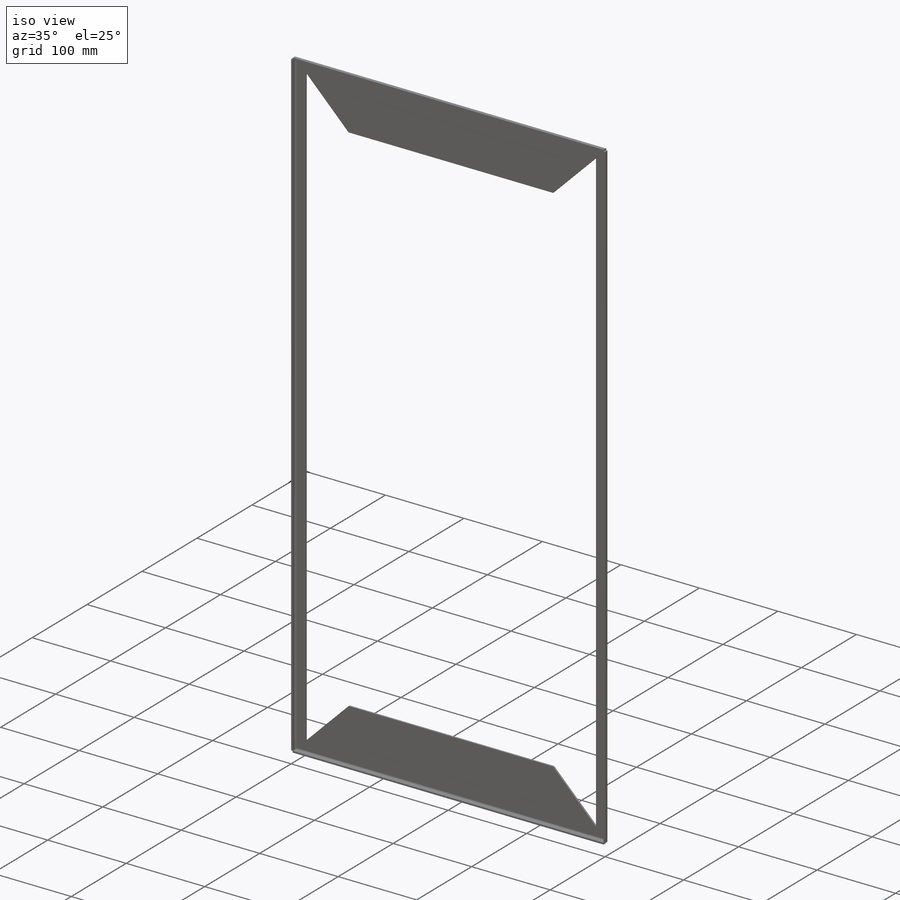
[diagram: iso view]
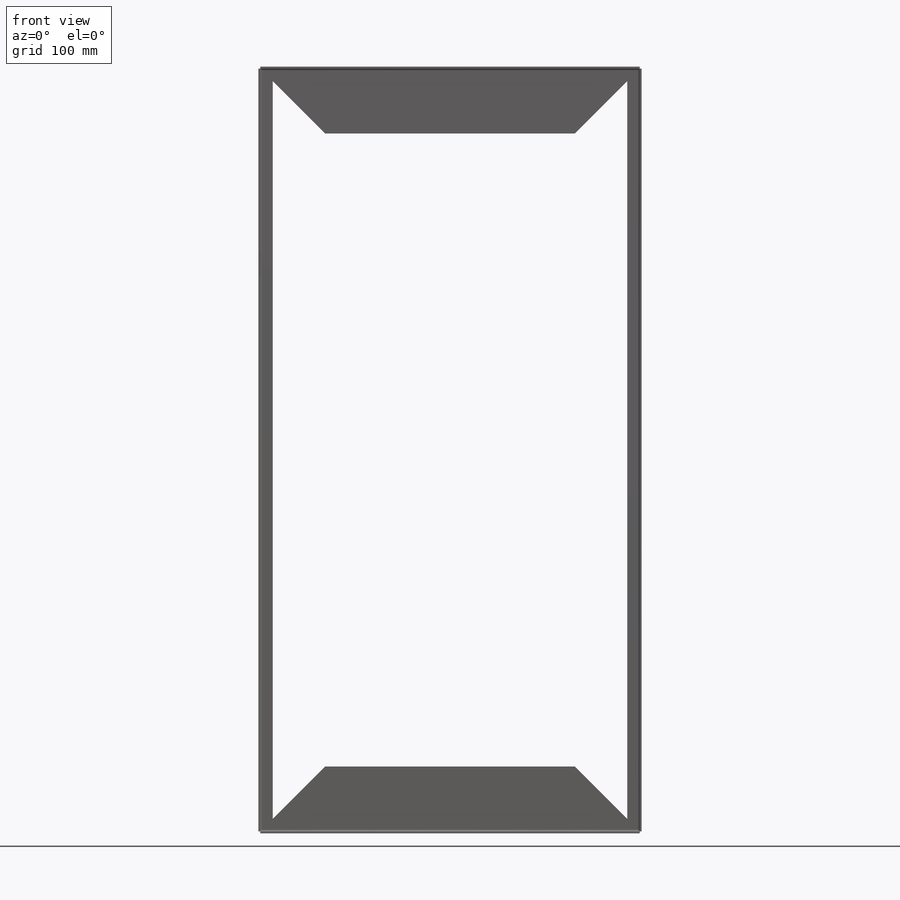
[diagram: front view]
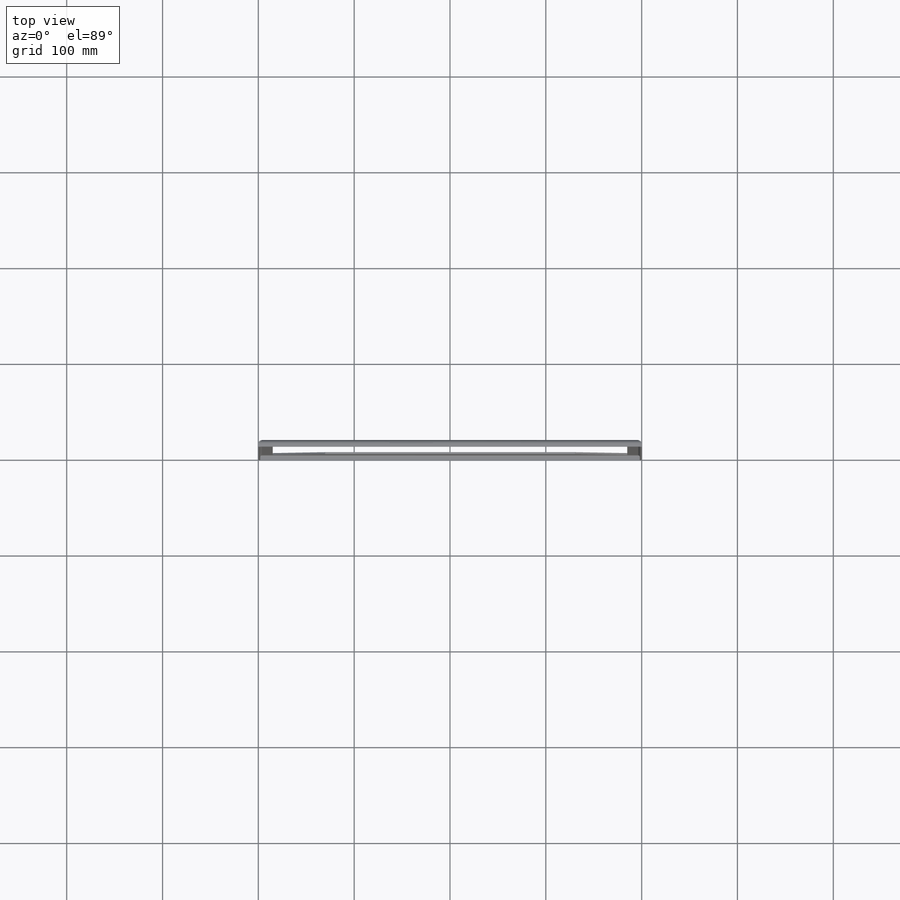
[diagram: top view]
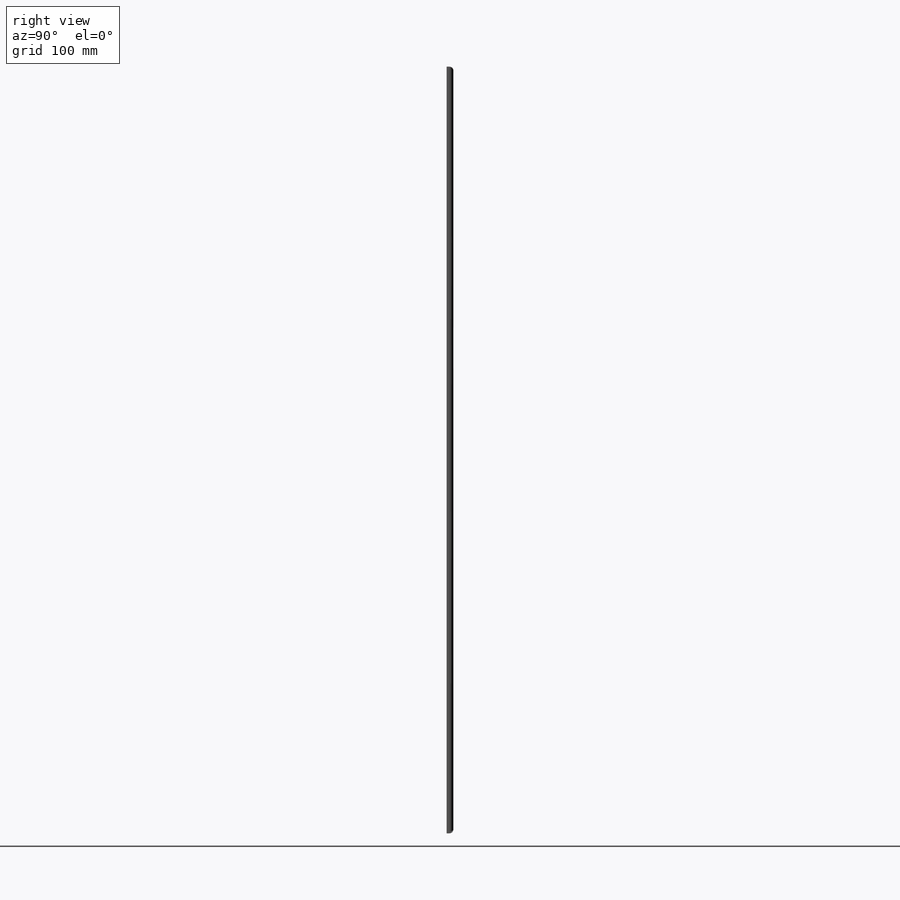
[diagram: right view]
SOLIDWORKS PART (.sldprt)
format: sldprt  version: not decoded by parser v0  size: 348,160 bytes
history: native  units: mm
features: sketch x13, plane x6, sheet_metal_op x6, pattern_circular x2, material x1 + 5 further entries (+10 scaffold rows collapsed; 4 parser-record rows omitted)
feature tree (47):
  scaffold x10  (default folders/planes/origin — collapsed)
  material  "Material <nicht festgelegt>"
  "Zuschnittslistenelement2"
  plane  "Ebene vorne"
  plane  "Ebene oben"
  plane  "Ebene rechts"
  sketch  "Skizze1"  dims[D1=800.0mm D2=400.0mm]
  plane  "Ebene1"
  plane  "Ebene2"
  sketch  "Skizze2"  dims[D1=7.0mm D2=15.0mm]
  plane  "Ebene3"  Offset=2mm
  sheet_metal_op  "Basis-Blech1"
  sketch  "Skizze7"  dims[Basis-Blech2=0.0]
  sheet_metal_op  "Basisbiegung2"
  pattern_circular  "Kreismuster1"  Count=1 Angle=90deg
  pattern_circular  "AbgeleiteteBiegung2"  Count=1 Angle=90deg
  sketch  "Biegung-Linien1"
  sketch  "Rahmen1"
  sheet_metal_op  "Blech1"
  "Abwicklung1"
  sketch  "Biegung-Linien2"
  sketch  "Rahmen2"
  parser-record x4  (decoder bookkeeping rows leaked as tree rows — omitted from the tree; the rows remain in map.json)
  sheet_metal_op  "Blech2"
  "Abwicklung2"
  sketch  "Biegung-Linien3"
  sketch  "Rahmen3"
  sheet_metal_op  "Blech3"
  "Abwicklung3"
  sketch  "Biegung-Linien4"
  sketch  "Rahmen4"
  sheet_metal_op  "Blech4"
  "Abwicklung4"
  sketch  "Biegung-Linien5"
  sketch  "Rahmen5"
decode coverage: 5 of 21 modeling features carry decoded parameters; 5 rows unclassified (native names shown)
note: suppression state not decoded; provenance and decode notes live in map.json
